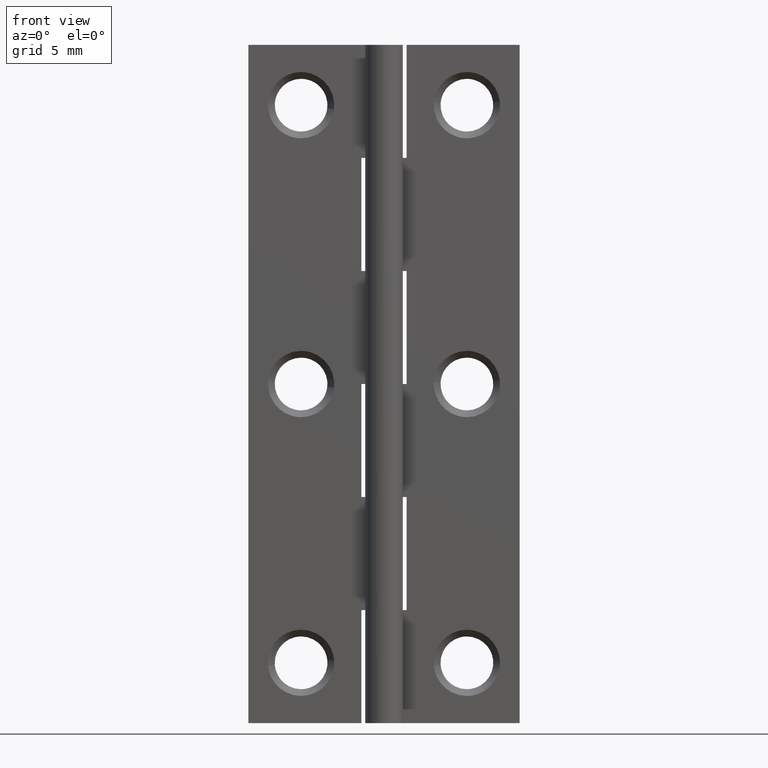
[diagram: clean part render]
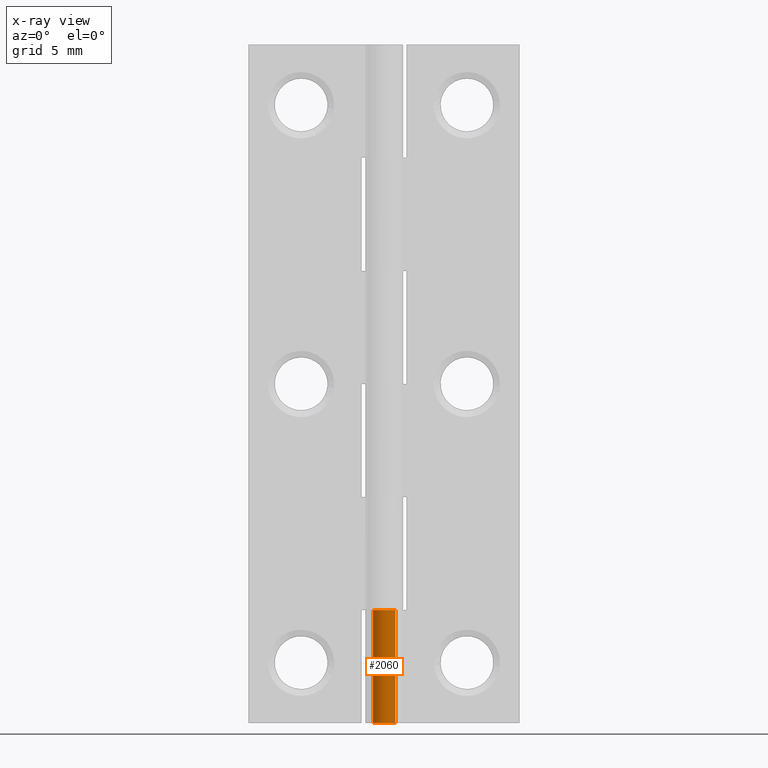
[diagram: x-ray — body ghosted, one internal face saturated and labeled with its STEP entity id]
A machine part, front view, then the same camera in x-ray: the body is ghosted and one INTERNAL B-rep face — a face not visible from any outside direction — is saturated and labeled: STEP entity #2060.
In plain terms, the highlighted face is a freeform B-spline surface patch.
Its self-contained STEP definition (entity closure, byte-faithful):
#1509=CARTESIAN_POINT('',(0.621369455316238,0.420000000000000,7.500000000000000));
#1510=VERTEX_POINT('',#1509);
#1516=CARTESIAN_POINT('',(0.0,0.750000000000000,7.500000000000000));
#1517=VERTEX_POINT('',#1516);
#1518=CARTESIAN_POINT('',(0.0,0.750000000000000,7.500000000000000));
#1519=CARTESIAN_POINT('',(-0.586111262182081,0.750000000000000,7.500000000000000));
#1520=CARTESIAN_POINT('',(-0.727765947517106,0.181264242570148,7.500000000000000));
#1521=CARTESIAN_POINT('',(-0.869420632852130,-0.387471514859705,7.500000000000000));
#1522=CARTESIAN_POINT('',(-0.351781181986757,-0.662382064974589,7.500000000000000));
#1523=CARTESIAN_POINT('',(0.165858268878616,-0.937292615089472,7.500000000000000));
#1524=CARTESIAN_POINT('',(0.557725015508411,-0.501440731369265,7.500000000000000));
#1525=CARTESIAN_POINT('',(0.949591762138205,-0.065588847649057,7.500000000000000));
#1526=CARTESIAN_POINT('',(0.621369455316239,0.420000000000001,7.500000000000000));
#1534=(BOUNDED_CURVE()B_SPLINE_CURVE(2,(#1518,#1519,#1520,#1521,#1522,#1523,#1524,#1525,#1526),.UNSPECIFIED.,.F.,.U.)B_SPLINE_CURVE_WITH_KNOTS((3,2,2,2,3),(0.0,0.250000000000000,0.500000000000000,0.750000000000000,1.0),.UNSPECIFIED.)CURVE()GEOMETRIC_REPRESENTATION_ITEM()RATIONAL_B_SPLINE_CURVE((1.0,0.787935802194632,1.0,0.787935802194632,1.0,0.787935802194632,1.0,0.787935802194632,1.0))REPRESENTATION_ITEM(''));
#1535=EDGE_CURVE('',#1517,#1510,#1534,.T.);
#1754=CARTESIAN_POINT('',(0.621369455316238,0.420000000000000,0.0));
#1755=VERTEX_POINT('',#1754);
#1756=CARTESIAN_POINT('',(0.0,0.750000000000000,0.0));
#1757=VERTEX_POINT('',#1756);
#1758=CARTESIAN_POINT('',(0.621369455316239,0.420000000000001,0.0));
#1759=CARTESIAN_POINT('',(0.949591762138205,-0.065588847649056,0.0));
#1760=CARTESIAN_POINT('',(0.557725015508411,-0.501440731369264,0.0));
#1761=CARTESIAN_POINT('',(0.165858268878617,-0.937292615089472,0.0));
#1762=CARTESIAN_POINT('',(-0.351781181986756,-0.662382064974589,0.0));
#1763=CARTESIAN_POINT('',(-0.869420632852130,-0.387471514859706,0.0));
#1764=CARTESIAN_POINT('',(-0.727765947517106,0.181264242570147,0.0));
#1765=CARTESIAN_POINT('',(-0.586111262182082,0.750000000000000,0.0));
#1766=CARTESIAN_POINT('',(0.0,0.750000000000000,0.0));
#1774=(BOUNDED_CURVE()B_SPLINE_CURVE(2,(#1758,#1759,#1760,#1761,#1762,#1763,#1764,#1765,#1766),.UNSPECIFIED.,.F.,.U.)B_SPLINE_CURVE_WITH_KNOTS((3,2,2,2,3),(0.0,0.250000000000000,0.500000000000000,0.750000000000000,1.0),.UNSPECIFIED.)CURVE()GEOMETRIC_REPRESENTATION_ITEM()RATIONAL_B_SPLINE_CURVE((1.0,0.787935802194632,1.0,0.787935802194632,1.0,0.787935802194632,1.0,0.787935802194632,1.0))REPRESENTATION_ITEM(''));
#1775=EDGE_CURVE('',#1755,#1757,#1774,.T.);
#1860=CARTESIAN_POINT('',(0.621369455316238,0.420000000000000,7.500000000000000));
#1861=CARTESIAN_POINT('',(0.621369455316238,0.420000000000000,0.0));
#1862=QUASI_UNIFORM_CURVE('',1,(#1860,#1861),.UNSPECIFIED.,.F.,.U.);
#1863=EDGE_CURVE('',#1510,#1755,#1862,.T.);
#2001=CARTESIAN_POINT('',(0.0,0.750000000000000,7.500000000000000));
#2002=CARTESIAN_POINT('',(0.0,0.750000000000000,0.0));
#2003=QUASI_UNIFORM_CURVE('',1,(#2001,#2002),.UNSPECIFIED.,.F.,.U.);
#2004=EDGE_CURVE('',#1517,#1757,#2003,.T.);
#2032=CARTESIAN_POINT('',(0.006544901623780,0.749971442298128,7.687500000000001));
#2033=CARTESIAN_POINT('',(0.006544901623780,0.749971442298128,-0.192187500000000));
#2034=CARTESIAN_POINT('',(-0.930689392370682,0.758150562070782,7.687500000000000));
#2035=CARTESIAN_POINT('',(-0.930689392370682,0.758150562070782,-0.192187500000000));
#2036=CARTESIAN_POINT('',(-0.733154004489143,-0.158067092405513,7.687500000000001));
#2037=CARTESIAN_POINT('',(-0.733154004489143,-0.158067092405513,-0.192187500000000));
#2038=CARTESIAN_POINT('',(-0.535618616607604,-1.074284746881808,7.687500000000000));
#2039=CARTESIAN_POINT('',(-0.535618616607604,-1.074284746881808,-0.192187500000000));
#2040=CARTESIAN_POINT('',(0.314985101220683,-0.680649973194002,7.687500000000001));
#2041=CARTESIAN_POINT('',(0.314985101220683,-0.680649973194002,-0.192187500000000));
#2042=CARTESIAN_POINT('',(1.165588819048969,-0.287015199506197,7.687500000000000));
#2043=CARTESIAN_POINT('',(1.165588819048969,-0.287015199506197,-0.192187500000000));
#2044=CARTESIAN_POINT('',(0.595015005218426,0.456571071756541,7.687500000000001));
#2045=CARTESIAN_POINT('',(0.595015005218426,0.456571071756541,-0.192187500000000));
#2053=(BOUNDED_SURFACE()B_SPLINE_SURFACE(1,2,((#2032,#2034,#2036,#2038,#2040,#2042,#2044),(#2033,#2035,#2037,#2039,#2041,#2043,#2045)),.UNSPECIFIED.,.F.,.F.,.U.)B_SPLINE_SURFACE_WITH_KNOTS((2,2),(3,2,2,3),(0.0,7.879687500000001),(0.0,1.0,2.0,3.0),.UNSPECIFIED.)GEOMETRIC_REPRESENTATION_ITEM()RATIONAL_B_SPLINE_SURFACE(((1.0,0.624788514543960,1.0,0.624788514543960,1.0,0.624788514543960,1.0),(1.0,0.624788514543960,1.0,0.624788514543960,1.0,0.624788514543960,1.0)))REPRESENTATION_ITEM('')SURFACE());
#2054=ORIENTED_EDGE('',*,*,#2004,.F.);
#2055=ORIENTED_EDGE('',*,*,#1535,.T.);
#2056=ORIENTED_EDGE('',*,*,#1863,.T.);
#2057=ORIENTED_EDGE('',*,*,#1775,.T.);
#2058=EDGE_LOOP('',(#2054,#2055,#2056,#2057));
#2059=FACE_OUTER_BOUND('',#2058,.T.);
#2060=ADVANCED_FACE('',(#2059),#2053,.F.);